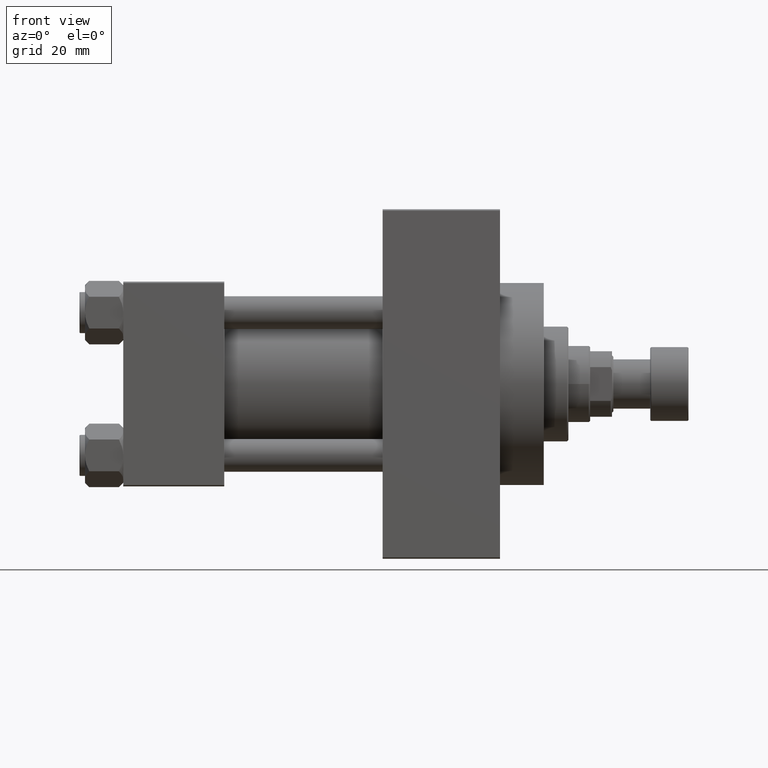
[diagram: clean part render]
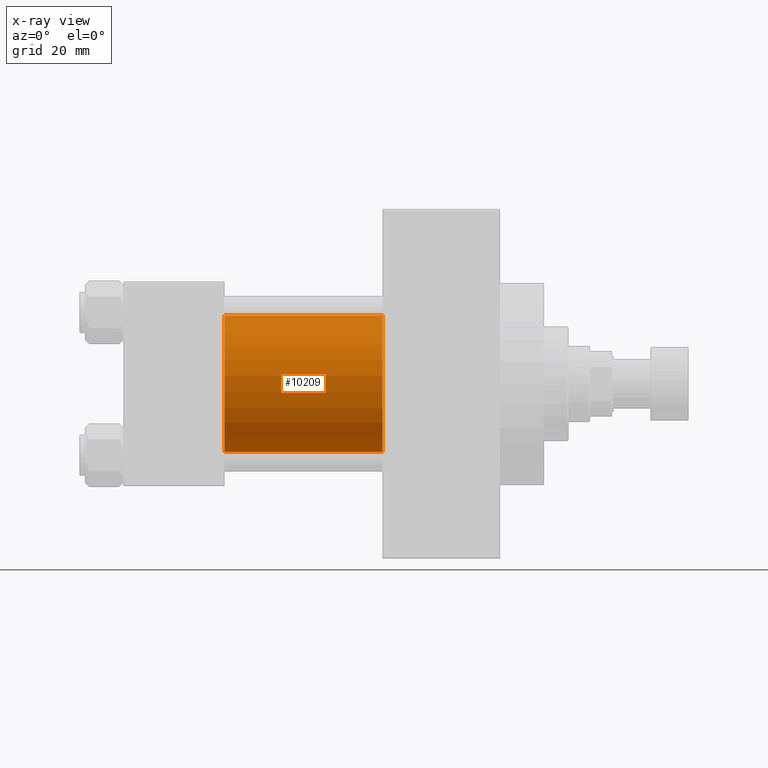
[diagram: x-ray — body ghosted, one internal face saturated and labeled with its STEP entity id]
A machine part, front view, then the same camera in x-ray: the body is ghosted and one INTERNAL B-rep face — a face not visible from any outside direction — is saturated and labeled: STEP entity #10209.
In plain terms, the highlighted cylindrical surface (partial cylindrical patch) has radius 25 mm, axis along (-1, -0, -0).
Its self-contained STEP definition (entity closure, byte-faithful):
#1712 = DIRECTION ( 'NONE',  ( 0.000000000000000000, 0.000000000000000000, -1.000000000000000000 ) ) ;
#2342 = EDGE_LOOP ( 'NONE', ( #18107, #10023, #22963, #24353 ) ) ;
#2698 = EDGE_CURVE ( 'NONE', #11755, #27858, #14962, .T. ) ;
#3325 = CARTESIAN_POINT ( 'NONE',  ( 95.00000000000000000, -2.602085213965210642E-15, 0.000000000000000000 ) ) ;
#4328 = CARTESIAN_POINT ( 'NONE',  ( 95.00000000000000000, 4.595317839031718093E-16, -25.00000000000000000 ) ) ;
#5716 = DIRECTION ( 'NONE',  ( 0.000000000000000000, 0.000000000000000000, -1.000000000000000000 ) ) ;
#5902 = VERTEX_POINT ( 'NONE', #21883 ) ;
#7430 = CYLINDRICAL_SURFACE ( 'NONE', #45633, 25.00000000000000000 ) ;
#7720 = EDGE_CURVE ( 'NONE', #11755, #5902, #41125, .T. ) ;
#8487 = CARTESIAN_POINT ( 'NONE',  ( 95.00000000000000000, 4.595317839031718093E-16, -25.00000000000000000 ) ) ;
#9404 = DIRECTION ( 'NONE',  ( 1.000000000000000000, 0.000000000000000000, 0.000000000000000000 ) ) ;
#10023 = ORIENTED_EDGE ( 'NONE', *, *, #46611, .T. ) ;
#10209 = ADVANCED_FACE ( 'NONE', ( #43565 ), #7430, .F. ) ;
#10796 = DIRECTION ( 'NONE',  ( -1.000000000000000000, -0.000000000000000000, -0.000000000000000000 ) ) ;
#11755 = VERTEX_POINT ( 'NONE', #17422 ) ;
#11947 = VECTOR ( 'NONE', #15829, 1000.000000000000000 ) ;
#14962 = CIRCLE ( 'NONE', #24972, 25.00000000000000000 ) ;
#15829 = DIRECTION ( 'NONE',  ( -1.000000000000000000, -0.000000000000000000, -0.000000000000000000 ) ) ;
#17422 = CARTESIAN_POINT ( 'NONE',  ( 95.00000000000000000, -2.602085213965210642E-15, 25.00000000000000000 ) ) ;
#17769 = DIRECTION ( 'NONE',  ( 0.000000000000000000, 0.000000000000000000, 1.000000000000000000 ) ) ;
#18107 = ORIENTED_EDGE ( 'NONE', *, *, #2698, .T. ) ;
#19986 = CIRCLE ( 'NONE', #43858, 25.00000000000000000 ) ;
#21883 = CARTESIAN_POINT ( 'NONE',  ( 37.00000000000000000, -2.602085213965210642E-15, 25.00000000000000000 ) ) ;
#22963 = ORIENTED_EDGE ( 'NONE', *, *, #34544, .F. ) ;
#24353 = ORIENTED_EDGE ( 'NONE', *, *, #7720, .F. ) ;
#24972 = AXIS2_PLACEMENT_3D ( 'NONE', #27746, #9404, #1712 ) ;
#27438 = CARTESIAN_POINT ( 'NONE',  ( 37.00000000000000000, -2.602085213965210642E-15, 0.000000000000000000 ) ) ;
#27746 = CARTESIAN_POINT ( 'NONE',  ( 95.00000000000000000, -2.602085213965210642E-15, 0.000000000000000000 ) ) ;
#27858 = VERTEX_POINT ( 'NONE', #8487 ) ;
#28092 = VECTOR ( 'NONE', #44326, 1000.000000000000000 ) ;
#29191 = CARTESIAN_POINT ( 'NONE',  ( 37.00000000000000000, 4.595317839031718093E-16, -25.00000000000000000 ) ) ;
#34544 = EDGE_CURVE ( 'NONE', #5902, #39420, #19986, .T. ) ;
#37517 = CARTESIAN_POINT ( 'NONE',  ( 95.00000000000000000, -2.602085213965210642E-15, 25.00000000000000000 ) ) ;
#39420 = VERTEX_POINT ( 'NONE', #29191 ) ;
#40705 = LINE ( 'NONE', #4328, #28092 ) ;
#41125 = LINE ( 'NONE', #37517, #11947 ) ;
#42573 = DIRECTION ( 'NONE',  ( 1.000000000000000000, 0.000000000000000000, 0.000000000000000000 ) ) ;
#43565 = FACE_OUTER_BOUND ( 'NONE', #2342, .T. ) ;
#43858 = AXIS2_PLACEMENT_3D ( 'NONE', #27438, #42573, #5716 ) ;
#44326 = DIRECTION ( 'NONE',  ( -1.000000000000000000, -0.000000000000000000, -0.000000000000000000 ) ) ;
#45633 = AXIS2_PLACEMENT_3D ( 'NONE', #3325, #10796, #17769 ) ;
#46611 = EDGE_CURVE ( 'NONE', #27858, #39420, #40705, .T. ) ;